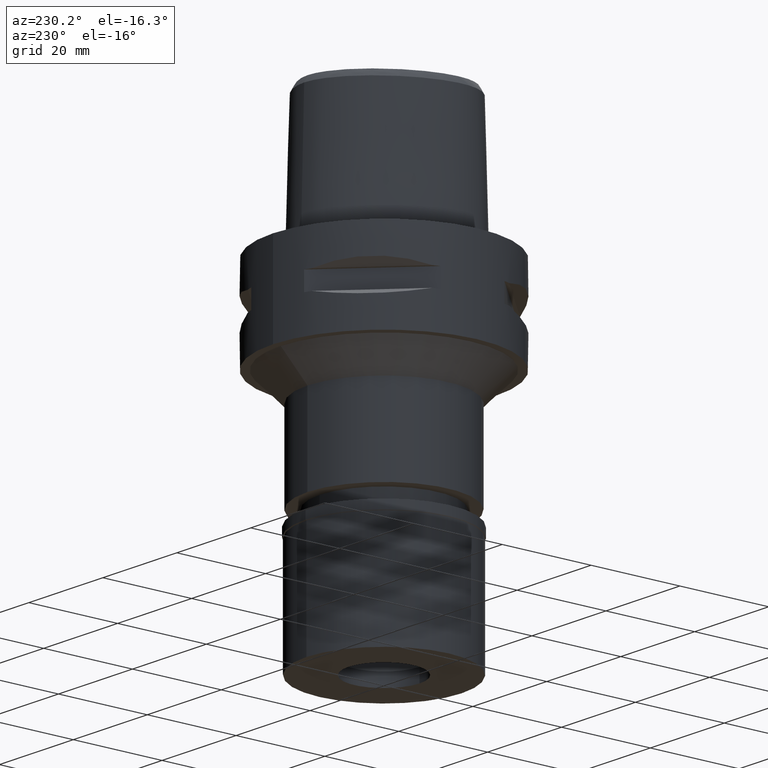
[diagram: clean part render]
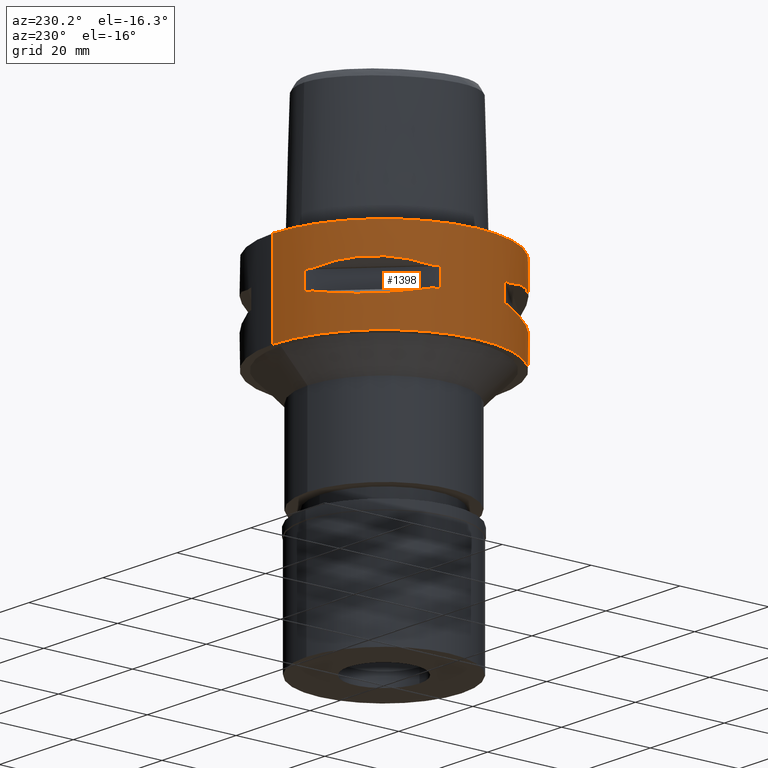
[diagram: same view with one face highlighted and labeled with its STEP entity id]
A machine part, auxiliary view. The second image highlights one B-rep face of the part: STEP entity #1398.
In plain terms, the highlighted cylindrical surface (partial cylindrical patch) has radius 25 mm, axis along (0, 0, -1).
Its self-contained STEP definition (entity closure, byte-faithful):
#8 = CARTESIAN_POINT ( 'NONE',  ( 0.0000000000000000000, 1.263835496719999960E-14, 0.0000000000000000000 ) ) ;
#22 = CARTESIAN_POINT ( 'NONE',  ( 0.0000000000000000000, 1.263835496719999960E-14, -12.05000000000000071 ) ) ;
#63 = EDGE_CURVE ( 'NONE', #3224, #4432, #4843, .T. ) ;
#86 = CARTESIAN_POINT ( 'NONE',  ( -13.41274673326490152, -21.09754014382208354, -6.967492033992159328 ) ) ;
#114 = CARTESIAN_POINT ( 'NONE',  ( -13.48572973711178946, -21.05082155772271690, -6.956769630346702371 ) ) ;
#193 = ORIENTED_EDGE ( 'NONE', *, *, #3710, .T. ) ;
#197 = CARTESIAN_POINT ( 'NONE',  ( -21.05082155772163333, -13.48572973711064193, -13.04323036965292637 ) ) ;
#202 = CARTESIAN_POINT ( 'NONE',  ( -23.95277699797999915, -7.159921374230999724, -7.950000000000000178 ) ) ;
#216 = EDGE_CURVE ( 'NONE', #1019, #2850, #2087, .T. ) ;
#220 = CARTESIAN_POINT ( 'NONE',  ( -21.01958685664054372, -13.53433973752400377, -13.05032380590162511 ) ) ;
#244 = CARTESIAN_POINT ( 'NONE',  ( -13.74471461761470792, -20.88268233906292437, -13.08031795579734791 ) ) ;
#246 = EDGE_CURVE ( 'NONE', #3600, #2065, #1080, .T. ) ;
#325 = CARTESIAN_POINT ( 'NONE',  ( 0.0000000000000000000, 1.263835496719999960E-14, -7.950000000000000178 ) ) ;
#335 = VERTEX_POINT ( 'NONE', #1352 ) ;
#370 = EDGE_LOOP ( 'NONE', ( #1716, #3294, #1555, #2823, #3718, #3296, #738, #3644 ) ) ;
#409 = VERTEX_POINT ( 'NONE', #4018 ) ;
#438 = CARTESIAN_POINT ( 'NONE',  ( -8.646484890751999330, 23.45715880140000209, -7.949999999998999201 ) ) ;
#439 = AXIS2_PLACEMENT_3D ( 'NONE', #905, #1655, #2769 ) ;
#463 = CARTESIAN_POINT ( 'NONE',  ( -9.515641234306031038, 23.13678124604833286, -12.27403800212850093 ) ) ;
#473 = CARTESIAN_POINT ( 'NONE',  ( -21.00321793043675811, 13.55971422200878784, -6.945999690326025267 ) ) ;
#483 = CARTESIAN_POINT ( 'NONE',  ( -20.56020460724335308, -14.22535762327175313, -6.855111341548274062 ) ) ;
#497 = CARTESIAN_POINT ( 'NONE',  ( -17.05439749816197192, 18.30096971348884338, -6.622489432101803075 ) ) ;
#511 = CARTESIAN_POINT ( 'NONE',  ( -23.45715880140000209, 8.646484890751999330, -12.05000000000000071 ) ) ;
#536 = CARTESIAN_POINT ( 'NONE',  ( -18.30096971346383938, 17.05439749819285566, -13.37751056790111903 ) ) ;
#548 = DIRECTION ( 'NONE',  ( 0.0000000000000000000, 0.0000000000000000000, -1.000000000000000000 ) ) ;
#549 = AXIS2_PLACEMENT_3D ( 'NONE', #4428, #2066, #1347 ) ;
#563 = EDGE_LOOP ( 'NONE', ( #4009, #1260, #193, #663 ) ) ;
#564 = CARTESIAN_POINT ( 'NONE',  ( -21.00321793043546847, -13.55971422200801157, -13.05400030967367364 ) ) ;
#587 = CIRCLE ( 'NONE', #2260, 24.99999999999999645 ) ;
#588 = CARTESIAN_POINT ( 'NONE',  ( -13.67544437571023153, -20.92801700160370970, -13.07054629644085786 ) ) ;
#611 = CARTESIAN_POINT ( 'NONE',  ( -23.45715880140000209, -8.646484890756999775, -12.05000000000000071 ) ) ;
#620 = AXIS2_PLACEMENT_3D ( 'NONE', #8, #3789, #3369 ) ;
#644 = AXIS2_PLACEMENT_3D ( 'NONE', #1900, #2322, #3517 ) ;
#663 = ORIENTED_EDGE ( 'NONE', *, *, #4199, .T. ) ;
#682 = DIRECTION ( 'NONE',  ( -0.9382863520558295534, 0.3458593956303108730, 0.0000000000000000000 ) ) ;
#712 = CARTESIAN_POINT ( 'NONE',  ( 0.0000000000000000000, 25.00000000000000000, -20.00000000000000000 ) ) ;
#738 = ORIENTED_EDGE ( 'NONE', *, *, #2970, .T. ) ;
#760 = DIRECTION ( 'NONE',  ( 0.0000000000000000000, 0.0000000000000000000, 1.000000000000000000 ) ) ;
#761 = VERTEX_POINT ( 'NONE', #785 ) ;
#785 = CARTESIAN_POINT ( 'NONE',  ( -8.646484890756999775, 23.45715880140000209, -12.05000000000000071 ) ) ;
#786 = VECTOR ( 'NONE', #1140, 1000.000000000000000 ) ;
#788 = CARTESIAN_POINT ( 'NONE',  ( -21.20561591939790347, 13.24197703503406665, -6.993086720738538986 ) ) ;
#798 = VERTEX_POINT ( 'NONE', #3874 ) ;
#832 = CARTESIAN_POINT ( 'NONE',  ( -20.11654071404096200, -14.85488513036636959, -6.779232838917330639 ) ) ;
#834 = VERTEX_POINT ( 'NONE', #2033 ) ;
#835 = CARTESIAN_POINT ( 'NONE',  ( -20.92801700160071476, 13.67544437571354266, -13.07054629644097687 ) ) ;
#836 = VERTEX_POINT ( 'NONE', #4019 ) ;
#889 = CARTESIAN_POINT ( 'NONE',  ( -12.20403021318853476, 21.82791133048002763, -12.83722430138890225 ) ) ;
#905 = CARTESIAN_POINT ( 'NONE',  ( 0.0000000000000000000, 1.263835496719999960E-14, -12.05000000000000071 ) ) ;
#909 = B_SPLINE_CURVE_WITH_KNOTS ( 'NONE', 3,
 ( #4581, #3149, #3866, #3492, #2724, #3890, #86, #114, #1183, #4240, #2698, #4604, #1927, #2348, #832, #483, #3441, #1239, #1951, #1974, #1614, #4215, #1541, #3125 ),
 .UNSPECIFIED., .F., .F.,
 ( 4, 1, 1, 1, 1, 1, 2, 2, 2, 1, 1, 1, 1, 1, 2, 2, 4 ),
 ( 0.0000000000000000000, 0.1249999999999972522, 0.1874999999999959754, 0.2187499999999952538, 0.2343749999999949762, 0.2421874999999949762, 0.2460937499999949762, 0.2499999999999950040, 0.4999999999999990008, 0.6250000000000011102, 0.6875000000000022204, 0.7187500000000028866, 0.7343750000000033307, 0.7421875000000035527, 0.7460937500000036637, 0.7500000000000037748, 1.000000000000000000 ),
 .UNSPECIFIED. ) ;
#914 = CARTESIAN_POINT ( 'NONE',  ( -8.646484890756999775, 23.45715880140000209, -12.05000000000000071 ) ) ;
#935 = CARTESIAN_POINT ( 'NONE',  ( 0.0000000000000000000, 1.263835496719999960E-14, -12.05000000000000071 ) ) ;
#942 = DIRECTION ( 'NONE',  ( 0.0000000000000000000, 0.0000000000000000000, -1.000000000000000000 ) ) ;
#1019 = VERTEX_POINT ( 'NONE', #2545 ) ;
#1020 = CARTESIAN_POINT ( 'NONE',  ( -22.58788056562029922, -10.78455809745187111, -12.56798337782941744 ) ) ;
#1080 = LINE ( 'NONE', #3230, #1127 ) ;
#1127 = VECTOR ( 'NONE', #4880, 1000.000000000000000 ) ;
#1140 = DIRECTION ( 'NONE',  ( 0.0000000000000000000, 0.0000000000000000000, -1.000000000000000000 ) ) ;
#1183 = CARTESIAN_POINT ( 'NONE',  ( -13.53433973752512109, -21.01958685664160953, -6.949676194098018733 ) ) ;
#1213 = CARTESIAN_POINT ( 'NONE',  ( -20.11654071400031540, 14.85488513041178749, -13.22076716108514027 ) ) ;
#1223 = CARTESIAN_POINT ( 'NONE',  ( -21.05082155772270269, 13.48572973711181966, -6.956769630346695266 ) ) ;
#1226 = LINE ( 'NONE', #4257, #4672 ) ;
#1239 = CARTESIAN_POINT ( 'NONE',  ( -20.88268233906521587, -13.74471461761401692, -6.919682044202531301 ) ) ;
#1250 = CARTESIAN_POINT ( 'NONE',  ( -20.02826730453268667, 15.06560254768984208, -6.729245282049222787 ) ) ;
#1260 = ORIENTED_EDGE ( 'NONE', *, *, #4148, .F. ) ;
#1282 = CARTESIAN_POINT ( 'NONE',  ( -16.43106916206558665, 18.92421359260760383, -13.37747608848198411 ) ) ;
#1297 = DIRECTION ( 'NONE',  ( 0.0000000000000000000, -1.000000000000000000, 0.0000000000000000000 ) ) ;
#1310 = VERTEX_POINT ( 'NONE', #438 ) ;
#1312 = CARTESIAN_POINT ( 'NONE',  ( 0.0000000000000000000, 25.00000000000000000, 0.0000000000000000000 ) ) ;
#1329 = DIRECTION ( 'NONE',  ( 0.0000000000000000000, 0.0000000000000000000, -1.000000000000000000 ) ) ;
#1347 = DIRECTION ( 'NONE',  ( -0.2863968549694120291, 0.9581110799190402094, 0.0000000000000000000 ) ) ;
#1352 = CARTESIAN_POINT ( 'NONE',  ( -8.646484890751999330, -23.45715880140000209, -12.05000000000000071 ) ) ;
#1358 = CARTESIAN_POINT ( 'NONE',  ( -8.646484890751999330, 23.45715880140000209, -7.949999999998999201 ) ) ;
#1390 = CARTESIAN_POINT ( 'NONE',  ( -13.60713573003076249, -20.97251445226584110, -13.06082541678113174 ) ) ;
#1398 = ADVANCED_FACE ( 'NONE', ( #2418, #3555, #2041 ), #3930, .T. ) ;
#1466 = ORIENTED_EDGE ( 'NONE', *, *, #3308, .F. ) ;
#1498 = B_SPLINE_CURVE_WITH_KNOTS ( 'NONE', 3,
 ( #611, #3246, #1020, #3649, #2146, #1717, #2876, #197, #220, #564, #4023, #1736, #2527, #2077, #4778, #3998, #4752, #244, #588, #2832, #1390, #4419, #3674, #3226 ),
 .UNSPECIFIED., .F., .F.,
 ( 4, 1, 1, 1, 1, 1, 2, 2, 2, 1, 1, 1, 1, 1, 2, 2, 4 ),
 ( 0.0000000000000000000, 0.1249999999999980294, 0.1874999999999968636, 0.2187499999999962530, 0.2343749999999959754, 0.2421874999999957812, 0.2460937499999955869, 0.2499999999999953926, 0.5000000000000005551, 0.6250000000000031086, 0.6875000000000044409, 0.7187500000000051070, 0.7343750000000054401, 0.7421875000000055511, 0.7460937500000055511, 0.7500000000000055511, 1.000000000000000000 ),
 .UNSPECIFIED. ) ;
#1517 = LINE ( 'NONE', #3035, #786 ) ;
#1541 = CARTESIAN_POINT ( 'NONE',  ( -22.81626994452527413, -10.38516041955628211, -7.501830467889171850 ) ) ;
#1555 = ORIENTED_EDGE ( 'NONE', *, *, #3464, .T. ) ;
#1585 = EDGE_CURVE ( 'NONE', #834, #2550, #3757, .T. ) ;
#1592 = CARTESIAN_POINT ( 'NONE',  ( -12.89853354822446718, 21.41803043592210543, -12.95342092614171570 ) ) ;
#1614 = CARTESIAN_POINT ( 'NONE',  ( -20.97251445226687849, -13.60713573003191712, -6.939174583218509440 ) ) ;
#1627 = CARTESIAN_POINT ( 'NONE',  ( -21.82791133048528565, 12.20403021317924974, -7.162775698613260467 ) ) ;
#1655 = DIRECTION ( 'NONE',  ( 0.0000000000000000000, 0.0000000000000000000, -1.000000000000000000 ) ) ;
#1676 = CIRCLE ( 'NONE', #4440, 25.00000000000001066 ) ;
#1716 = ORIENTED_EDGE ( 'NONE', *, *, #3249, .T. ) ;
#1717 = CARTESIAN_POINT ( 'NONE',  ( -21.20561591939681989, -13.24197703503267753, -13.00691327926098140 ) ) ;
#1723 = DIRECTION ( 'NONE',  ( 0.0000000000000000000, 0.0000000000000000000, -1.000000000000000000 ) ) ;
#1736 = CARTESIAN_POINT ( 'NONE',  ( -18.92421359266165126, -16.43106916201666934, -13.37747608848409264 ) ) ;
#1752 = CARTESIAN_POINT ( 'NONE',  ( 0.0000000000000000000, 1.263835496719999960E-14, -20.00000000000000000 ) ) ;
#1838 = VERTEX_POINT ( 'NONE', #2126 ) ;
#1864 = CARTESIAN_POINT ( 'NONE',  ( 0.0000000000000000000, 1.263835496719999960E-14, -7.950000000000000178 ) ) ;
#1900 = CARTESIAN_POINT ( 'NONE',  ( 0.0000000000000000000, 1.263835496719999960E-14, -12.05000000000000071 ) ) ;
#1927 = CARTESIAN_POINT ( 'NONE',  ( -18.30096971349451707, -17.05439749815792894, -6.622489432101130724 ) ) ;
#1942 = CARTESIAN_POINT ( 'NONE',  ( -21.09754014382206222, 13.41274673326494593, -6.967492033992142453 ) ) ;
#1951 = CARTESIAN_POINT ( 'NONE',  ( -20.92801700160548251, -13.67544437571028837, -6.929453703558926314 ) ) ;
#1974 = CARTESIAN_POINT ( 'NONE',  ( -20.95817024474063928, -13.62920640916672710, -6.936020264392994683 ) ) ;
#1977 = CARTESIAN_POINT ( 'NONE',  ( -13.55971422200804888, 21.00321793043550755, -13.05400030967368785 ) ) ;
#2001 = CARTESIAN_POINT ( 'NONE',  ( -20.88268233905774807, 13.74471461762043312, -13.08031795579756640 ) ) ;
#2033 = CARTESIAN_POINT ( 'NONE',  ( -23.45715880140000209, 8.646484890751999330, -7.949999999998999201 ) ) ;
#2036 = CARTESIAN_POINT ( 'NONE',  ( -23.13678124605220887, 9.515641234298858109, -7.725961997873363352 ) ) ;
#2041 = FACE_BOUND ( 'NONE', #370, .T. ) ;
#2046 = CARTESIAN_POINT ( 'NONE',  ( -19.18226349636000805, 16.07509500021993887, -13.33749867752047358 ) ) ;
#2060 = CARTESIAN_POINT ( 'NONE',  ( 0.0000000000000000000, 1.263835496719999960E-14, 3.200000000000000178 ) ) ;
#2065 = VERTEX_POINT ( 'NONE', #4040 ) ;
#2066 = DIRECTION ( 'NONE',  ( 0.0000000000000000000, 0.0000000000000000000, 1.000000000000000000 ) ) ;
#2077 = CARTESIAN_POINT ( 'NONE',  ( -16.07509500017260251, -19.18226349640280048, -13.33749867751863327 ) ) ;
#2087 = LINE ( 'NONE', #202, #4071 ) ;
#2126 = CARTESIAN_POINT ( 'NONE',  ( -23.95277699797999915, 7.159921374235000080, -12.05000000000000071 ) ) ;
#2146 = CARTESIAN_POINT ( 'NONE',  ( -21.41803043592453548, -12.89853354821786446, -12.95342092614003171 ) ) ;
#2178 = DIRECTION ( 'NONE',  ( -0.9581110799190402094, -0.2863968549694120291, 0.0000000000000000000 ) ) ;
#2242 = AXIS2_PLACEMENT_3D ( 'NONE', #4095, #3000, #682 ) ;
#2260 = AXIS2_PLACEMENT_3D ( 'NONE', #22, #2961, #4902 ) ;
#2277 = DIRECTION ( 'NONE',  ( -0.3458593956303108730, -0.9382863520558295534, 0.0000000000000000000 ) ) ;
#2300 = ORIENTED_EDGE ( 'NONE', *, *, #1585, .T. ) ;
#2322 = DIRECTION ( 'NONE',  ( 0.0000000000000000000, 0.0000000000000000000, -1.000000000000000000 ) ) ;
#2348 = CARTESIAN_POINT ( 'NONE',  ( -19.18226349641366824, -16.07509500015883219, -6.662501322483088018 ) ) ;
#2351 = DIRECTION ( 'NONE',  ( 0.0000000000000000000, 0.0000000000000000000, -1.000000000000000000 ) ) ;
#2358 = EDGE_CURVE ( 'NONE', #761, #2676, #3684, .T. ) ;
#2386 = CARTESIAN_POINT ( 'NONE',  ( -14.85488513037166491, 20.11654071403350841, -6.779232838918209048 ) ) ;
#2391 = EDGE_CURVE ( 'NONE', #1838, #798, #587, .T. ) ;
#2399 = VERTEX_POINT ( 'NONE', #2658 ) ;
#2418 = FACE_OUTER_BOUND ( 'NONE', #563, .T. ) ;
#2433 = CARTESIAN_POINT ( 'NONE',  ( 0.0000000000000000000, -25.00000000000000000, 0.0000000000000000000 ) ) ;
#2435 = DIRECTION ( 'NONE',  ( 0.0000000000000000000, 0.0000000000000000000, 1.000000000000000000 ) ) ;
#2505 = CARTESIAN_POINT ( 'NONE',  ( -10.38516041957925218, 22.81626994451680446, -7.501830467883248588 ) ) ;
#2517 = DIRECTION ( 'NONE',  ( 0.0000000000000000000, 0.0000000000000000000, 1.000000000000000000 ) ) ;
#2523 = ORIENTED_EDGE ( 'NONE', *, *, #2955, .F. ) ;
#2527 = CARTESIAN_POINT ( 'NONE',  ( -17.05439749816580886, -18.30096971348830692, -13.37751056790007809 ) ) ;
#2545 = CARTESIAN_POINT ( 'NONE',  ( -23.95277699797999915, -7.159921374235000080, -7.950000000000000178 ) ) ;
#2550 = VERTEX_POINT ( 'NONE', #3231 ) ;
#2622 = VECTOR ( 'NONE', #1329, 1000.000000000000000 ) ;
#2658 = CARTESIAN_POINT ( 'NONE',  ( -8.646484890751999330, -23.45715880140000209, -7.949999999998999201 ) ) ;
#2676 = VERTEX_POINT ( 'NONE', #3880 ) ;
#2698 = CARTESIAN_POINT ( 'NONE',  ( -15.06560254768016804, -20.02826730453908866, -6.729245282050563048 ) ) ;
#2724 = CARTESIAN_POINT ( 'NONE',  ( -12.89853354821933351, -21.41803043592571498, -7.046579073859429165 ) ) ;
#2729 = CARTESIAN_POINT ( 'NONE',  ( -13.53433973752455621, 21.01958685664031989, -13.05032380590174235 ) ) ;
#2763 = CARTESIAN_POINT ( 'NONE',  ( -18.92421359266977277, 16.43106916201610090, -6.622523911513353845 ) ) ;
#2769 = DIRECTION ( 'NONE',  ( -0.3458593956303108730, 0.9382863520558295534, 0.0000000000000000000 ) ) ;
#2778 = CARTESIAN_POINT ( 'NONE',  ( -10.78455809746692928, 22.58788056561475344, -12.56798337783328634 ) ) ;
#2800 = CARTESIAN_POINT ( 'NONE',  ( -20.95817024473767987, 13.62920640916783555, -13.06397973560677883 ) ) ;
#2823 = ORIENTED_EDGE ( 'NONE', *, *, #4120, .F. ) ;
#2832 = CARTESIAN_POINT ( 'NONE',  ( -13.62920640916616577, -20.95817024473919687, -13.06397973560672554 ) ) ;
#2850 = VERTEX_POINT ( 'NONE', #3362 ) ;
#2863 = CIRCLE ( 'NONE', #644, 25.00000000000001066 ) ;
#2876 = CARTESIAN_POINT ( 'NONE',  ( -21.09754014382098930, -13.41274673326371136, -13.03250796600744721 ) ) ;
#2891 = ORIENTED_EDGE ( 'NONE', *, *, #3585, .T. ) ;
#2955 = EDGE_CURVE ( 'NONE', #1838, #2550, #1226, .T. ) ;
#2961 = DIRECTION ( 'NONE',  ( 0.0000000000000000000, 0.0000000000000000000, -1.000000000000000000 ) ) ;
#2970 = EDGE_CURVE ( 'NONE', #1019, #836, #3892, .T. ) ;
#2979 = VERTEX_POINT ( 'NONE', #3697 ) ;
#3000 = DIRECTION ( 'NONE',  ( 0.0000000000000000000, 0.0000000000000000000, 1.000000000000000000 ) ) ;
#3035 = CARTESIAN_POINT ( 'NONE',  ( -7.159921374230999724, 23.95277699797999915, -7.950000000000000178 ) ) ;
#3036 = ORIENTED_EDGE ( 'NONE', *, *, #2358, .T. ) ;
#3104 = DIRECTION ( 'NONE',  ( -0.2863968549694120291, -0.9581110799190402094, 0.0000000000000000000 ) ) ;
#3125 = CARTESIAN_POINT ( 'NONE',  ( -23.45715880140000209, -8.646484890751999330, -7.949999999998999201 ) ) ;
#3138 = CARTESIAN_POINT ( 'NONE',  ( -21.41803043592563682, 12.89853354821951470, -7.046579073859381204 ) ) ;
#3149 = CARTESIAN_POINT ( 'NONE',  ( -9.515641234298614748, -23.13678124605229058, -7.725961997873423748 ) ) ;
#3178 = CARTESIAN_POINT ( 'NONE',  ( -21.01958685664161308, 13.53433973752513353, -6.949676194098015181 ) ) ;
#3186 = VERTEX_POINT ( 'NONE', #4488 ) ;
#3187 = CARTESIAN_POINT ( 'NONE',  ( -15.06560254766712248, 20.02826730454206228, -13.27075471794584693 ) ) ;
#3224 = VERTEX_POINT ( 'NONE', #712 ) ;
#3226 = CARTESIAN_POINT ( 'NONE',  ( -8.646484890751999330, -23.45715880140000209, -12.05000000000000071 ) ) ;
#3230 = CARTESIAN_POINT ( 'NONE',  ( -7.159921374230999724, -23.95277699797999915, -12.05000000000000071 ) ) ;
#3231 = CARTESIAN_POINT ( 'NONE',  ( -23.95277699797999915, 7.159921374230999724, -7.950000000000000178 ) ) ;
#3246 = CARTESIAN_POINT ( 'NONE',  ( -23.13678124605149833, -9.515641234297431694, -12.27403800212630891 ) ) ;
#3249 = EDGE_CURVE ( 'NONE', #2399, #2065, #1676, .T. ) ;
#3272 = CARTESIAN_POINT ( 'NONE',  ( -13.90573822667652415, 20.77616787493939299, -6.897428778967473306 ) ) ;
#3274 = AXIS2_PLACEMENT_3D ( 'NONE', #2060, #548, #1297 ) ;
#3294 = ORIENTED_EDGE ( 'NONE', *, *, #246, .F. ) ;
#3296 = ORIENTED_EDGE ( 'NONE', *, *, #216, .F. ) ;
#3308 = EDGE_CURVE ( 'NONE', #2979, #2676, #1517, .T. ) ;
#3355 = AXIS2_PLACEMENT_3D ( 'NONE', #1752, #2517, #4042 ) ;
#3362 = CARTESIAN_POINT ( 'NONE',  ( -23.95277699797999915, -7.159921374230999724, -12.05000000000000071 ) ) ;
#3363 = EDGE_CURVE ( 'NONE', #761, #798, #4301, .T. ) ;
#3369 = DIRECTION ( 'NONE',  ( 0.0000000000000000000, -1.000000000000000000, 0.0000000000000000000 ) ) ;
#3437 = ORIENTED_EDGE ( 'NONE', *, *, #3363, .F. ) ;
#3441 = CARTESIAN_POINT ( 'NONE',  ( -20.77616787494172357, -13.90573822667486326, -6.897428778967199747 ) ) ;
#3464 = EDGE_CURVE ( 'NONE', #3600, #335, #4288, .T. ) ;
#3482 = CARTESIAN_POINT ( 'NONE',  ( -23.45715880140000209, 8.646484890751999330, -7.949999999998999201 ) ) ;
#3489 = AXIS2_PLACEMENT_3D ( 'NONE', #935, #2351, #3104 ) ;
#3492 = CARTESIAN_POINT ( 'NONE',  ( -12.20403021317893000, -21.82791133048539578, -7.162775698613341291 ) ) ;
#3517 = DIRECTION ( 'NONE',  ( -0.9382863520558295534, -0.3458593956303108730, 0.0000000000000000000 ) ) ;
#3544 = CARTESIAN_POINT ( 'NONE',  ( -22.81626994450270374, 10.38516041961251268, -12.49816953212508608 ) ) ;
#3555 = FACE_BOUND ( 'NONE', #4118, .T. ) ;
#3565 = CARTESIAN_POINT ( 'NONE',  ( -20.97251445226615019, 13.60713573002994181, -13.06082541678091324 ) ) ;
#3575 = CARTESIAN_POINT ( 'NONE',  ( -13.62920640916697756, 20.95817024474028401, -6.936020264393032875 ) ) ;
#3577 = VECTOR ( 'NONE', #942, 1000.000000000000000 ) ;
#3585 = EDGE_CURVE ( 'NONE', #2979, #1310, #4130, .T. ) ;
#3600 = VERTEX_POINT ( 'NONE', #4038 ) ;
#3601 = CARTESIAN_POINT ( 'NONE',  ( -12.03062603423251353, 21.99328990739627443, -7.166052136924299987 ) ) ;
#3623 = CARTESIAN_POINT ( 'NONE',  ( -13.74471461761487134, 20.88268233906401150, -6.919682044202670745 ) ) ;
#3644 = ORIENTED_EDGE ( 'NONE', *, *, #4738, .F. ) ;
#3649 = CARTESIAN_POINT ( 'NONE',  ( -21.82791133048418786, -12.20403021317722292, -12.83722430138600323 ) ) ;
#3651 = AXIS2_PLACEMENT_3D ( 'NONE', #325, #2435, #2178 ) ;
#3674 = CARTESIAN_POINT ( 'NONE',  ( -10.38516041956038016, -22.81626994452193458, -12.49816953211165860 ) ) ;
#3684 = CIRCLE ( 'NONE', #439, 25.00000000000001066 ) ;
#3697 = CARTESIAN_POINT ( 'NONE',  ( -7.159921374235000080, 23.95277699797999915, -7.950000000000000178 ) ) ;
#3710 = EDGE_CURVE ( 'NONE', #3771, #409, #4597, .T. ) ;
#3718 = ORIENTED_EDGE ( 'NONE', *, *, #4802, .T. ) ;
#3757 = CIRCLE ( 'NONE', #2242, 25.00000000000001066 ) ;
#3771 = VERTEX_POINT ( 'NONE', #4186 ) ;
#3789 = DIRECTION ( 'NONE',  ( 0.0000000000000000000, 0.0000000000000000000, -1.000000000000000000 ) ) ;
#3866 = CARTESIAN_POINT ( 'NONE',  ( -10.78455809745365990, -22.58788056562143254, -7.432016622169925313 ) ) ;
#3869 = CARTESIAN_POINT ( 'NONE',  ( -13.41274673326554101, 21.09754014382029297, -13.03250796600789663 ) ) ;
#3874 = CARTESIAN_POINT ( 'NONE',  ( -23.45715880140000209, 8.646484890751999330, -12.05000000000000071 ) ) ;
#3880 = CARTESIAN_POINT ( 'NONE',  ( -7.159921374230999724, 23.95277699797999915, -12.05000000000000071 ) ) ;
#3881 = DIRECTION ( 'NONE',  ( 0.0000000000000000000, 0.0000000000000000000, 1.000000000000000000 ) ) ;
#3890 = CARTESIAN_POINT ( 'NONE',  ( -13.24197703503396717, -21.20561591939793544, -6.993086720738562967 ) ) ;
#3892 = CIRCLE ( 'NONE', #3651, 24.99999999999999645 ) ;
#3895 = CARTESIAN_POINT ( 'NONE',  ( -20.56020460721917331, 14.22535762329778386, -13.14488865845300047 ) ) ;
#3902 = CARTESIAN_POINT ( 'NONE',  ( -14.22535762327484754, 20.56020460723900811, -6.855111341548783876 ) ) ;
#3930 = CYLINDRICAL_SURFACE ( 'NONE', #3274, 25.00000000000000000 ) ;
#3936 = CARTESIAN_POINT ( 'NONE',  ( -13.48572973711170953, 21.05082155772122832, -13.04323036965318039 ) ) ;
#3969 = CARTESIAN_POINT ( 'NONE',  ( -13.67544437571078220, 20.92801700160478973, -6.929453703559008915 ) ) ;
#3998 = CARTESIAN_POINT ( 'NONE',  ( -14.22535762327708397, -20.56020460723788901, -13.14488865845220289 ) ) ;
#4009 = ORIENTED_EDGE ( 'NONE', *, *, #63, .T. ) ;
#4018 = CARTESIAN_POINT ( 'NONE',  ( 0.0000000000000000000, 25.00000000000000000, 0.0000000000000000000 ) ) ;
#4019 = CARTESIAN_POINT ( 'NONE',  ( -23.45715880140000209, -8.646484890751999330, -7.949999999998999201 ) ) ;
#4023 = CARTESIAN_POINT ( 'NONE',  ( -20.02826730454556170, -15.06560254766883666, -13.27075471794798744 ) ) ;
#4037 = ORIENTED_EDGE ( 'NONE', *, *, #4047, .F. ) ;
#4038 = CARTESIAN_POINT ( 'NONE',  ( -7.159921374235000080, -23.95277699797999915, -12.05000000000000071 ) ) ;
#4040 = CARTESIAN_POINT ( 'NONE',  ( -7.159921374230999724, -23.95277699797999915, -7.950000000000000178 ) ) ;
#4042 = DIRECTION ( 'NONE',  ( 0.0000000000000000000, 1.000000000000000000, 0.0000000000000000000 ) ) ;
#4047 = EDGE_CURVE ( 'NONE', #834, #1310, #4515, .T. ) ;
#4071 = VECTOR ( 'NONE', #1723, 1000.000000000000000 ) ;
#4095 = CARTESIAN_POINT ( 'NONE',  ( 0.0000000000000000000, 1.263835496719999960E-14, -7.950000000000000178 ) ) ;
#4118 = EDGE_LOOP ( 'NONE', ( #2300, #2523, #4716, #3437, #3036, #1466, #2891, #4037 ) ) ;
#4120 = EDGE_CURVE ( 'NONE', #3186, #335, #1498, .T. ) ;
#4130 = CIRCLE ( 'NONE', #549, 24.99999999999999645 ) ;
#4148 = EDGE_CURVE ( 'NONE', #3771, #4432, #4328, .T. ) ;
#4186 = CARTESIAN_POINT ( 'NONE',  ( 0.0000000000000000000, -25.00000000000000000, 0.0000000000000000000 ) ) ;
#4199 = EDGE_CURVE ( 'NONE', #409, #3224, #4706, .T. ) ;
#4215 = CARTESIAN_POINT ( 'NONE',  ( -21.99328990740472634, -12.03062603420953813, -7.166052136930218808 ) ) ;
#4240 = CARTESIAN_POINT ( 'NONE',  ( -13.55971422200893706, -21.00321793043666219, -6.945999690326005727 ) ) ;
#4257 = CARTESIAN_POINT ( 'NONE',  ( -23.95277699797999915, 7.159921374230999724, -12.05000000000000071 ) ) ;
#4280 = CARTESIAN_POINT ( 'NONE',  ( -16.07509500016588433, 19.18226349640374195, -6.662501322484263078 ) ) ;
#4288 = CIRCLE ( 'NONE', #3489, 24.99999999999999645 ) ;
#4301 = B_SPLINE_CURVE_WITH_KNOTS ( 'NONE', 3,
 ( #914, #463, #2778, #889, #1592, #4606, #3869, #3936, #2729, #1977, #3187, #1282, #536, #2046, #1213, #3895, #4633, #2001, #835, #2800, #3565, #4319, #3544, #511 ),
 .UNSPECIFIED., .F., .F.,
 ( 4, 1, 1, 1, 1, 1, 2, 2, 2, 1, 1, 1, 1, 1, 2, 2, 4 ),
 ( 0.0000000000000000000, 0.1250000000000042744, 0.1875000000000064115, 0.2187500000000075218, 0.2343750000000079659, 0.2421875000000081601, 0.2460937500000082989, 0.2500000000000084377, 0.5000000000000065503, 0.6250000000000055511, 0.6875000000000051070, 0.7187500000000047740, 0.7343750000000045519, 0.7421875000000042188, 0.7460937500000041078, 0.7500000000000039968, 1.000000000000000000 ),
 .UNSPECIFIED. ) ;
#4319 = CARTESIAN_POINT ( 'NONE',  ( -21.99328990738197120, 12.03062603426555199, -12.83394786308387481 ) ) ;
#4328 = LINE ( 'NONE', #2433, #2622 ) ;
#4393 = CARTESIAN_POINT ( 'NONE',  ( -13.60713573003155474, 20.97251445226700284, -6.939174583218600922 ) ) ;
#4419 = CARTESIAN_POINT ( 'NONE',  ( -12.03062603421342125, -21.99328990740118428, -12.83394786307044555 ) ) ;
#4428 = CARTESIAN_POINT ( 'NONE',  ( 0.0000000000000000000, 1.263835496719999960E-14, -7.950000000000000178 ) ) ;
#4432 = VERTEX_POINT ( 'NONE', #4722 ) ;
#4440 = AXIS2_PLACEMENT_3D ( 'NONE', #1864, #760, #2277 ) ;
#4488 = CARTESIAN_POINT ( 'NONE',  ( -23.45715880140000209, -8.646484890756999775, -12.05000000000000071 ) ) ;
#4515 = B_SPLINE_CURVE_WITH_KNOTS ( 'NONE', 3,
 ( #3482, #2036, #4615, #1627, #3138, #788, #1942, #1223, #3178, #473, #1250, #2763, #497, #4280, #2386, #3902, #3272, #3623, #3969, #3575, #4393, #3601, #2505, #1358 ),
 .UNSPECIFIED., .F., .F.,
 ( 4, 1, 1, 1, 1, 1, 2, 2, 2, 1, 1, 1, 1, 1, 2, 2, 4 ),
 ( 0.0000000000000000000, 0.1249999999999968914, 0.1874999999999954481, 0.2187499999999946154, 0.2343749999999941991, 0.2421874999999940881, 0.2460937499999940048, 0.2499999999999939493, 0.4999999999999980016, 0.6249999999999998890, 0.6875000000000008882, 0.7187500000000012212, 0.7343750000000012212, 0.7421875000000013323, 0.7460937500000013323, 0.7500000000000013323, 1.000000000000000000 ),
 .UNSPECIFIED. ) ;
#4581 = CARTESIAN_POINT ( 'NONE',  ( -8.646484890751999330, -23.45715880140000209, -7.949999999998999201 ) ) ;
#4597 = CIRCLE ( 'NONE', #620, 25.00000000000000000 ) ;
#4604 = CARTESIAN_POINT ( 'NONE',  ( -16.43106916200474643, -18.92421359267783743, -6.622523911514693218 ) ) ;
#4606 = CARTESIAN_POINT ( 'NONE',  ( -13.24197703503622137, 21.20561591939551249, -13.00691327926188201 ) ) ;
#4615 = CARTESIAN_POINT ( 'NONE',  ( -22.58788056562128332, 10.78455809745409155, -7.432016622169815179 ) ) ;
#4633 = CARTESIAN_POINT ( 'NONE',  ( -20.77616787492827655, 13.90573822668830140, -13.10257122103331362 ) ) ;
#4672 = VECTOR ( 'NONE', #3881, 1000.000000000000000 ) ;
#4706 = LINE ( 'NONE', #1312, #3577 ) ;
#4716 = ORIENTED_EDGE ( 'NONE', *, *, #2391, .T. ) ;
#4722 = CARTESIAN_POINT ( 'NONE',  ( 0.0000000000000000000, -25.00000000000000000, -20.00000000000000000 ) ) ;
#4738 = EDGE_CURVE ( 'NONE', #2399, #836, #909, .T. ) ;
#4752 = CARTESIAN_POINT ( 'NONE',  ( -13.90573822667720982, -20.77616787493829875, -13.10257122103289262 ) ) ;
#4778 = CARTESIAN_POINT ( 'NONE',  ( -14.85488513037629943, -20.11654071403241417, -13.22076716108376360 ) ) ;
#4802 = EDGE_CURVE ( 'NONE', #3186, #2850, #2863, .T. ) ;
#4843 = CIRCLE ( 'NONE', #3355, 25.00000000000000000 ) ;
#4880 = DIRECTION ( 'NONE',  ( 0.0000000000000000000, 0.0000000000000000000, 1.000000000000000000 ) ) ;
#4902 = DIRECTION ( 'NONE',  ( -0.9581110799190402094, 0.2863968549694120291, 0.0000000000000000000 ) ) ;